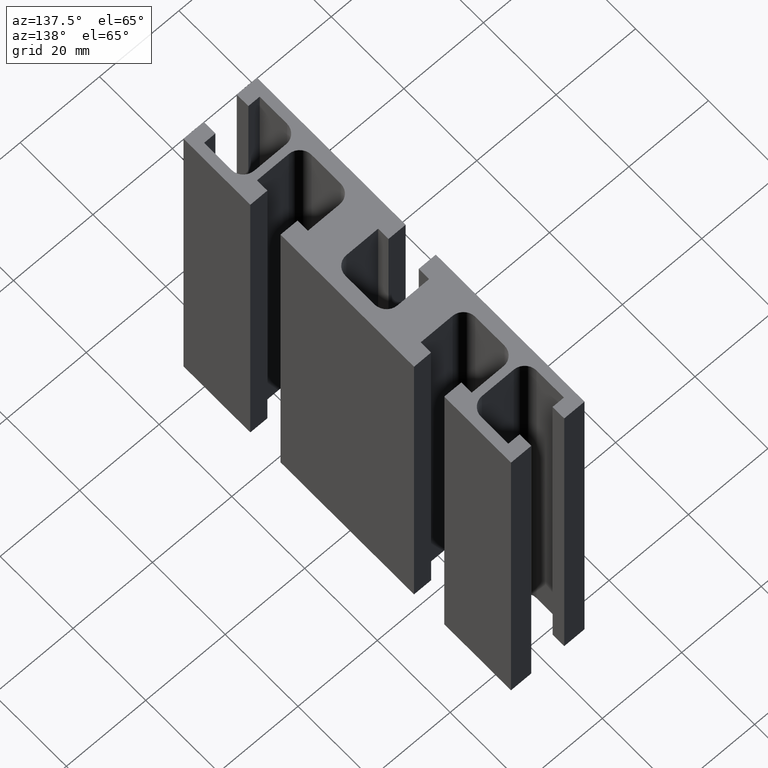
[diagram: clean part render]
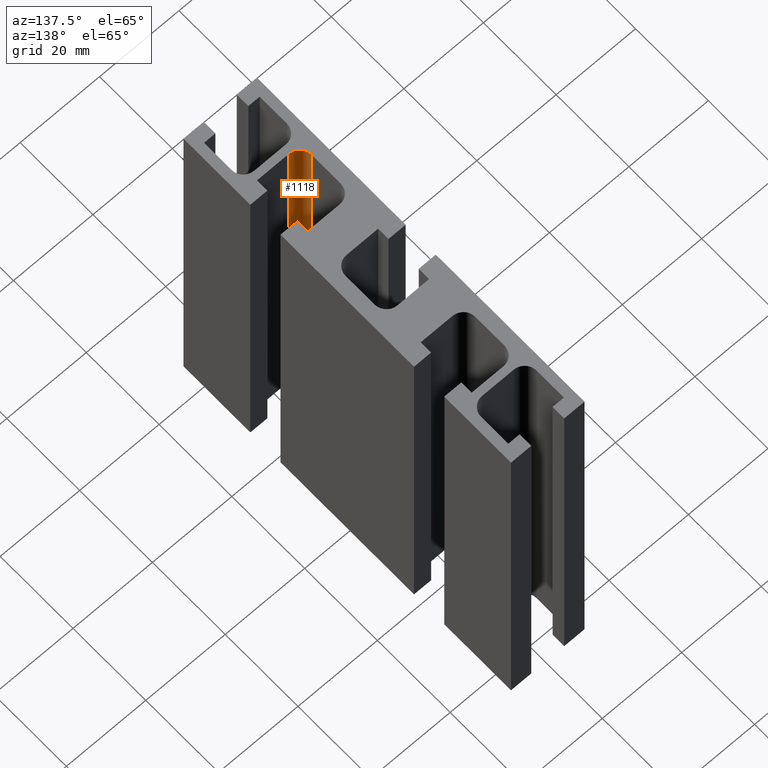
[diagram: same view with one face highlighted and labeled with its STEP entity id]
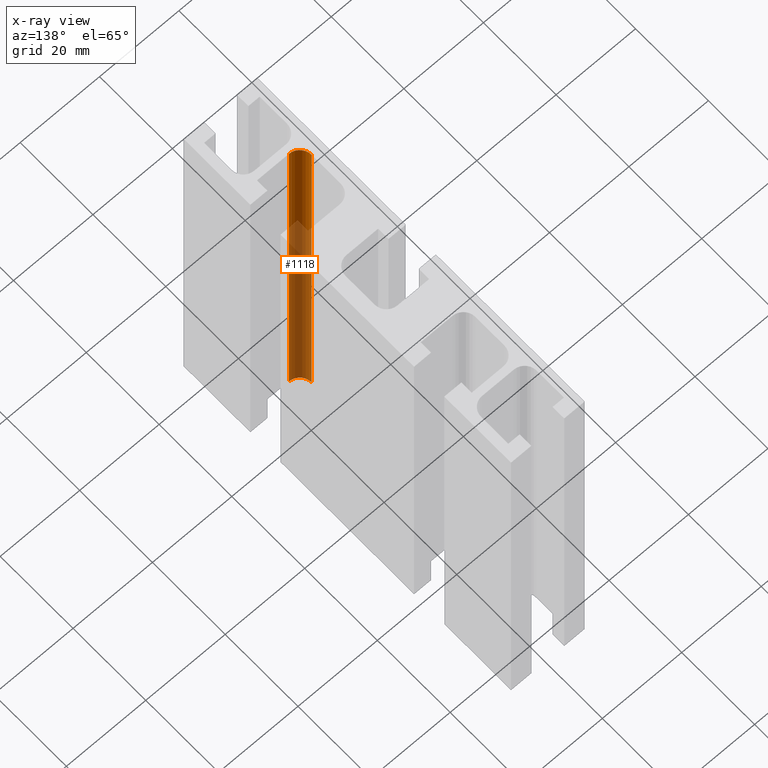
[diagram: x-ray of the same camera — body ghosted, the highlighted face saturated]
A machine part, auxiliary view. The second image highlights one B-rep face of the part: STEP entity #1118.
The next image is the same camera in x-ray: the body ghosted, the highlighted face saturated — about 67% of this face is hidden behind the body in this view.
In plain terms, the highlighted cylindrical surface (edge-blend (fillet) strip) has radius 3 mm, axis along (0, 0, 1).
Its self-contained STEP definition (entity closure, byte-faithful):
#29=CIRCLE('',#1191,3.00000000000001);
#30=CIRCLE('',#1192,3.00000000000001);
#42=CYLINDRICAL_SURFACE('',#1190,3.00000000000001);
#82=FACE_OUTER_BOUND('',#138,.T.);
#138=EDGE_LOOP('',(#859,#860,#861,#862));
#254=LINE('',#1736,#396);
#255=LINE('',#1742,#397);
#396=VECTOR('',#1416,100.);
#397=VECTOR('',#1423,100.);
#515=VERTEX_POINT('',#1732);
#516=VERTEX_POINT('',#1734);
#517=VERTEX_POINT('',#1738);
#518=VERTEX_POINT('',#1740);
#660=EDGE_CURVE('',#515,#516,#254,.T.);
#661=EDGE_CURVE('',#515,#517,#29,.T.);
#662=EDGE_CURVE('',#518,#516,#30,.T.);
#663=EDGE_CURVE('',#517,#518,#255,.T.);
#859=ORIENTED_EDGE('',*,*,#661,.F.);
#860=ORIENTED_EDGE('',*,*,#660,.T.);
#861=ORIENTED_EDGE('',*,*,#662,.F.);
#862=ORIENTED_EDGE('',*,*,#663,.F.);
#1118=ADVANCED_FACE('',(#82),#42,.F.);
#1190=AXIS2_PLACEMENT_3D('',#1737,#1417,#1418);
#1191=AXIS2_PLACEMENT_3D('',#1739,#1419,#1420);
#1192=AXIS2_PLACEMENT_3D('',#1741,#1421,#1422);
#1416=DIRECTION('',(0.,0.,1.));
#1417=DIRECTION('center_axis',(0.,0.,1.));
#1418=DIRECTION('ref_axis',(-1.,2.07241631263362E-14,0.));
#1419=DIRECTION('center_axis',(0.,0.,1.));
#1420=DIRECTION('ref_axis',(-1.,2.07241631263362E-14,0.));
#1421=DIRECTION('center_axis',(0.,0.,-1.));
#1422=DIRECTION('ref_axis',(-1.,2.07241631263362E-14,0.));
#1423=DIRECTION('',(0.,0.,1.));
#1732=CARTESIAN_POINT('',(-6.05000000000011,-26.4999999999999,0.));
#1734=CARTESIAN_POINT('',(-6.05000000000011,-26.4999999999999,100.));
#1736=CARTESIAN_POINT('',(-6.05000000000011,-26.4999999999999,0.));
#1737=CARTESIAN_POINT('Origin',(-3.0500000000001,-26.5,0.));
#1738=CARTESIAN_POINT('',(-3.0500000000001,-29.5,0.));
#1739=CARTESIAN_POINT('Origin',(-3.0500000000001,-26.5,0.));
#1740=CARTESIAN_POINT('',(-3.0500000000001,-29.5,100.));
#1741=CARTESIAN_POINT('Origin',(-3.0500000000001,-26.5,100.));
#1742=CARTESIAN_POINT('',(-3.0500000000001,-29.5,0.));